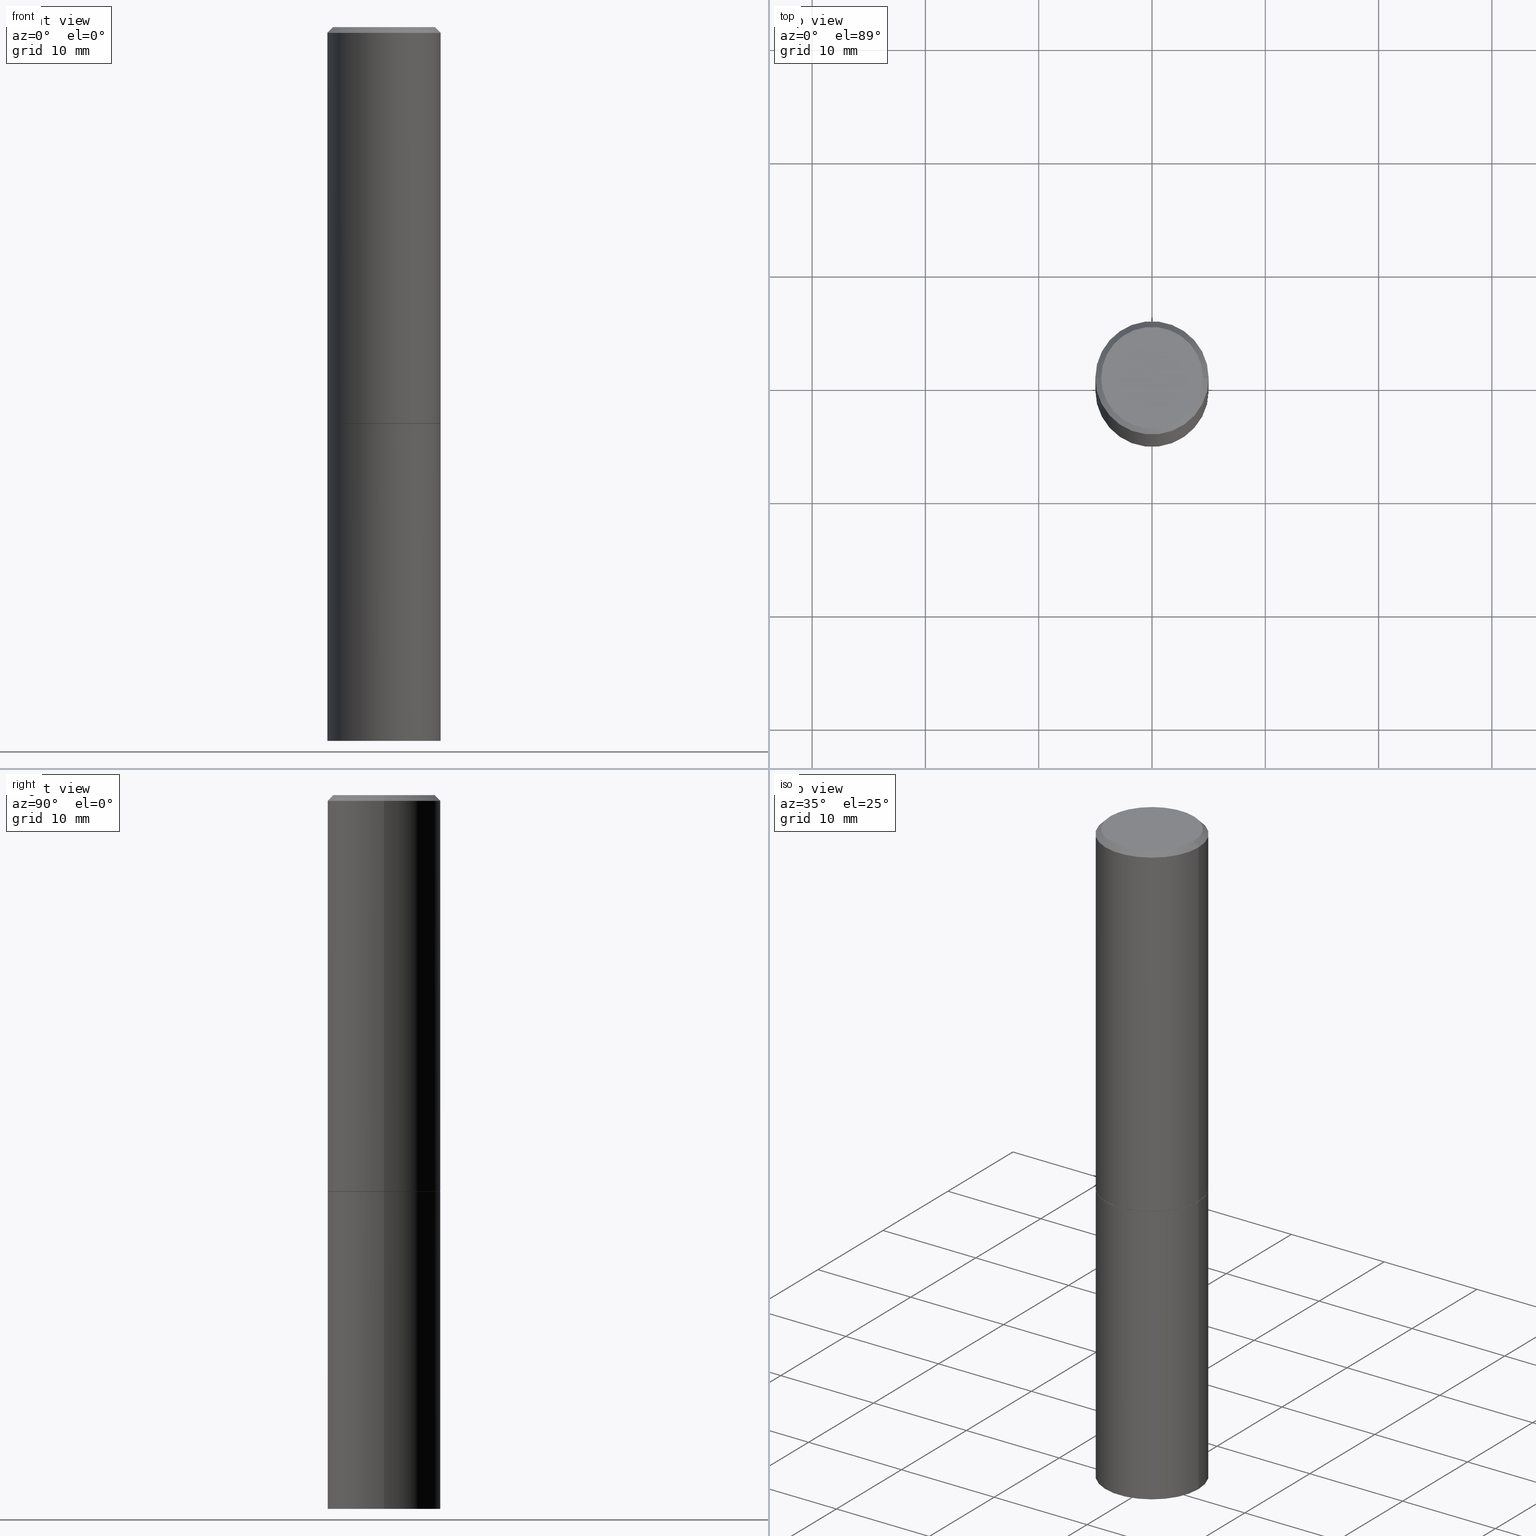
[diagram: canonical four-view strip — front | top / right | iso, engineering-drawing reading convention]
A machine part, canonical four-view strip (front | top / right | iso — engineering-drawing reading convention). The complete STEP part file that produces these views, byte-faithful:
ISO-10303-21;
HEADER;
FILE_DESCRIPTION (( 'STEP AP203' ),
    '1' );
FILE_NAME ('82978.STEP',
    '2024-02-29T20:14:35',
    ( '' ),
    ( '' ),
    'SwSTEP 2.0',
    'SolidWorks 2023',
    '' );
FILE_SCHEMA (( 'CONFIG_CONTROL_DESIGN' ));
ENDSEC;

DATA;
#1 = PRODUCT_RELATED_PRODUCT_CATEGORY ( 'detail', '', ( #253 ) ) ;
#2 = ORIENTED_EDGE ( 'NONE', *, *, #203, .F. ) ;
#3 = CARTESIAN_POINT ( 'NONE',  ( 0.1968500000000000250, -1.374596203102541608E-15, 9.598753983154300858E-30 ) ) ;
#4 = AXIS2_PLACEMENT_3D ( 'NONE', #13, #215, #325 ) ;
#5 = PERSON_AND_ORGANIZATION_ROLE ( 'creator' ) ;
#6 = DIRECTION ( 'NONE',  ( 2.438088387897960049E-29, -3.491481338843145188E-15, -1.000000000000000000 ) ) ;
#7 = EDGE_CURVE ( 'NONE', #239, #103, #52, .T. ) ;
#8 = LINE ( 'NONE', #126, #19 ) ;
#9 = CARTESIAN_POINT ( 'NONE',  ( 4.890937612370283668E-31, -6.982962677686305168E-17, -0.02000000000000004205 ) ) ;
#10 = APPROVAL_DATE_TIME ( #173, #142 ) ;
#11 = DIRECTION ( 'NONE',  ( 0.7071067811865465735, -7.319954787623252890E-15, -0.7071067811865484609 ) ) ;
#12 = CARTESIAN_POINT ( 'NONE',  ( -0.1968500000000000250, 1.398703375343757393E-15, -9.682923725166783677E-30 ) ) ;
#13 = CARTESIAN_POINT ( 'NONE',  ( 3.367165999236314681E-29, -4.807420655453126643E-15, -1.376900000000000013 ) ) ;
#14 = VECTOR ( 'NONE', #312, 39.37007874015748143 ) ;
#15 = APPLICATION_PROTOCOL_DEFINITION ( 'international standard', 'config_control_design', 1994, #271 ) ;
#16 = CARTESIAN_POINT ( 'NONE',  ( -0.1968500000000000250, -5.336713275418556283E-15, -2.480300000000000171 ) ) ;
#17 = CYLINDRICAL_SURFACE ( 'NONE', #230, 0.1968499999999998307 ) ;
#18 = ORIENTED_EDGE ( 'NONE', *, *, #348, .F. ) ;
#19 = VECTOR ( 'NONE', #96, 39.37007874015748143 ) ;
#20 = AXIS2_PLACEMENT_3D ( 'NONE', #255, #225, #334 ) ;
#21 = CC_DESIGN_PERSON_AND_ORGANIZATION_ASSIGNMENT ( #45, #353, ( #253 ) ) ;
#22 = DIRECTION ( 'NONE',  ( -2.445468806185136597E-29, 3.491481338843145583E-15, 1.000000000000000000 ) ) ;
#23 = EDGE_CURVE ( 'NONE', #317, #298, #8, .T. ) ;
#24 = ORGANIZATION ( 'UNSPECIFIED', 'UNSPECIFIED', '' ) ;
#25 = PLANE ( 'NONE',  #364 ) ;
#26 = PLANE ( 'NONE',  #307 ) ;
#27 = COORDINATED_UNIVERSAL_TIME_OFFSET ( 5, 0, .BEHIND. ) ;
#28 = AXIS2_PLACEMENT_3D ( 'NONE', #78, #195, #281 ) ;
#29 = CARTESIAN_POINT ( 'NONE',  ( 1.374596203102602153E-15, 0.1968499999999913375, -2.480300000000001059 ) ) ;
#30 = EDGE_CURVE ( 'NONE', #74, #298, #266, .T. ) ;
#31 = DIRECTION ( 'NONE',  ( -2.445468806185136597E-29, 3.491481338843145583E-15, 1.000000000000000000 ) ) ;
#32 = DATE_AND_TIME ( #42, #198 ) ;
#33 = DIRECTION ( 'NONE',  ( -1.000000000000000000, 6.982962677686265922E-15, -4.876176775795935793E-29 ) ) ;
#34 = ORIENTED_EDGE ( 'NONE', *, *, #265, .T. ) ;
#35 = ADVANCED_BREP_SHAPE_REPRESENTATION ( '82978', ( #99, #113, #132 ), #93 ) ;
#36 = PERSON_AND_ORGANIZATION ( #207, #24 ) ;
#37 = CARTESIAN_POINT ( 'NONE',  ( 0.1968500000000000250, -1.003451736783519694E-14, -2.480300000000000171 ) ) ;
#38 = AXIS2_PLACEMENT_3D ( 'NONE', #287, #231, #341 ) ;
#39 = ORIENTED_EDGE ( 'NONE', *, *, #51, .F. ) ;
#40 = AXIS2_PLACEMENT_3D ( 'NONE', #153, #176, #291 ) ;
#41 = CALENDAR_DATE ( 2024, 29, 2 ) ;
#42 = CALENDAR_DATE ( 2024, 29, 2 ) ;
#43 = EDGE_LOOP ( 'NONE', ( #177, #55, #242, #354 ) ) ;
#44 = DIRECTION ( 'NONE',  ( 1.000000000000000000, -6.982962677686266711E-15, 0.000000000000000000 ) ) ;
#45 = PERSON_AND_ORGANIZATION ( #207, #24 ) ;
#46 = ORIENTED_EDGE ( 'NONE', *, *, #200, .F. ) ;
#47 = CC_DESIGN_PERSON_AND_ORGANIZATION_ASSIGNMENT ( #166, #246, ( #363 ) ) ;
#48 = DIRECTION ( 'NONE',  ( 1.000000000000000000, -6.982962677686266711E-15, 0.000000000000000000 ) ) ;
#49 = DIRECTION ( 'NONE',  ( -2.445468806185136597E-29, 3.491481338843145583E-15, 1.000000000000000000 ) ) ;
#50 = VERTEX_POINT ( 'NONE', #16 ) ;
#51 = EDGE_CURVE ( 'NONE', #50, #284, #272, .T. ) ;
#52 = CIRCLE ( 'NONE', #83, 0.1768499999999997851 ) ;
#53 = AXIS2_PLACEMENT_3D ( 'NONE', #282, #22, #141 ) ;
#54 = CIRCLE ( 'NONE', #109, 0.1968499999999999417 ) ;
#55 = ORIENTED_EDGE ( 'NONE', *, *, #301, .T. ) ;
#56 = CARTESIAN_POINT ( 'NONE',  ( 3.369611468042499724E-29, -4.810912136791970439E-15, -1.377900000000000125 ) ) ;
#57 = CARTESIAN_POINT ( 'NONE',  ( -0.1958499999999999963, -3.414015734457591258E-15, -1.377899999999999903 ) ) ;
#58 = DIRECTION ( 'NONE',  ( 1.000000000000000000, -6.982962677686267499E-15, 0.000000000000000000 ) ) ;
#59 = DATE_TIME_ROLE ( 'creation_date' ) ;
#60 = DIRECTION ( 'NONE',  ( 2.445468806185136597E-29, -3.491481338843145583E-15, -1.000000000000000000 ) ) ;
#61 = ORIENTED_EDGE ( 'NONE', *, *, #73, .F. ) ;
#62 = PERSON_AND_ORGANIZATION ( #207, #24 ) ;
#63 = ORIENTED_EDGE ( 'NONE', *, *, #200, .T. ) ;
#64 = APPROVAL_PERSON_ORGANIZATION ( #327, #213, #104 ) ;
#65 = DIRECTION ( 'NONE',  ( -2.445468806185136597E-29, 3.491481338843145583E-15, 1.000000000000000000 ) ) ;
#66 = ORIENTED_EDGE ( 'NONE', *, *, #311, .F. ) ;
#67 = EDGE_CURVE ( 'NONE', #298, #74, #54, .T. ) ;
#68 = LENGTH_MEASURE_WITH_UNIT ( LENGTH_MEASURE( 0.02539999999999999897 ), #251 );
#69 = VECTOR ( 'NONE', #72, 39.37007874015748143 ) ;
#70 = EDGE_LOOP ( 'NONE', ( #252, #247, #347, #244 ) ) ;
#71 = ORIENTED_EDGE ( 'NONE', *, *, #115, .T. ) ;
#72 = DIRECTION ( 'NONE',  ( -2.445468806185136877E-29, 3.491481338843145188E-15, 1.000000000000000000 ) ) ;
#73 = EDGE_CURVE ( 'NONE', #332, #192, #80, .T. ) ;
#74 = VERTEX_POINT ( 'NONE', #352 ) ;
#75 = EDGE_LOOP ( 'NONE', ( #63, #165 ) ) ;
#76 = FACE_OUTER_BOUND ( 'NONE', #330, .T. ) ;
#77 = EDGE_CURVE ( 'NONE', #317, #130, #138, .T. ) ;
#78 = CARTESIAN_POINT ( 'NONE',  ( 3.369611468042499724E-29, -4.810912136791970439E-15, -1.377900000000000125 ) ) ;
#79 = CARTESIAN_POINT ( 'NONE',  ( -0.1768499999999997851, 1.269851762937246069E-15, 4.268512490091652920E-18 ) ) ;
#80 = CIRCLE ( 'NONE', #296, 0.1968499999999997752 ) ;
#81 = ADVANCED_FACE ( 'NONE', ( #76 ), #25, .F. ) ;
#82 = LOCAL_TIME ( 15, 14, 35.00000000000000000, #324 ) ;
#83 = AXIS2_PLACEMENT_3D ( 'NONE', #249, #268, #328 ) ;
#84 = CARTESIAN_POINT ( 'NONE',  ( 3.369611468042499724E-29, -4.810912136791970439E-15, -1.377900000000000125 ) ) ;
#85 = VECTOR ( 'NONE', #297, 39.37007874015748143 ) ;
#86 = ADVANCED_FACE ( 'NONE', ( #223 ), #136, .F. ) ;
#87 = DIMENSIONAL_EXPONENTS ( 1.000000000000000000, 0.000000000000000000, 0.000000000000000000, 0.000000000000000000, 0.000000000000000000, 0.000000000000000000, 0.000000000000000000 ) ;
#88 = CARTESIAN_POINT ( 'NONE',  ( 0.000000000000000000, 0.000000000000000000, 0.000000000000000000 ) ) ;
#89 = LOCAL_TIME ( 15, 14, 35.00000000000000000, #150 ) ;
#90 = LINE ( 'NONE', #3, #149 ) ;
#91 = DIRECTION ( 'NONE',  ( -1.000000000000000000, 6.982962677686266711E-15, 0.000000000000000000 ) ) ;
#92 = ORIENTED_EDGE ( 'NONE', *, *, #73, .T. ) ;
#93 =( GEOMETRIC_REPRESENTATION_CONTEXT ( 3 ) GLOBAL_UNCERTAINTY_ASSIGNED_CONTEXT ( ( #181 ) ) GLOBAL_UNIT_ASSIGNED_CONTEXT ( ( #218, #163, #133 ) ) REPRESENTATION_CONTEXT ( 'NONE', 'WORKASPACE' ) );
#94 = CALENDAR_DATE ( 2024, 29, 2 ) ;
#95 = APPLICATION_PROTOCOL_DEFINITION ( 'international standard', 'config_control_design', 1994, #292 ) ;
#96 = DIRECTION ( 'NONE',  ( 0.7071067811865957564, -2.468850131082761932E-15, 0.7071067811864992780 ) ) ;
#97 = DIRECTION ( 'NONE',  ( -2.445468806185136597E-29, 3.491481338843145583E-15, 1.000000000000000000 ) ) ;
#98 = AXIS2_PLACEMENT_3D ( 'NONE', #241, #60, #91 ) ;
#99 = MANIFOLD_SOLID_BREP ( 'Body-Move/Copy2[1]', #264 ) ;
#100 = ORIENTED_EDGE ( 'NONE', *, *, #224, .F. ) ;
#101 = ADVANCED_FACE ( 'NONE', ( #151 ), #108, .T. ) ;
#102 = CARTESIAN_POINT ( 'NONE',  ( 0.000000000000000000, 0.000000000000000000, 0.000000000000000000 ) ) ;
#103 = VERTEX_POINT ( 'NONE', #79 ) ;
#104 = APPROVAL_ROLE ( '' ) ;
#105 = ORIENTED_EDGE ( 'NONE', *, *, #265, .F. ) ;
#106 = CARTESIAN_POINT ( 'NONE',  ( 3.369611468042499163E-29, -4.810912136791969650E-15, -1.377899999999999903 ) ) ;
#107 = ORIENTED_EDGE ( 'NONE', *, *, #51, .T. ) ;
#108 = CONICAL_SURFACE ( 'NONE', #20, 0.1958499999999999963, 0.7853981633975165577 ) ;
#109 = AXIS2_PLACEMENT_3D ( 'NONE', #275, #131, #350 ) ;
#110 = DIRECTION ( 'NONE',  ( 1.000000000000000000, -6.982962677686268288E-15, 0.000000000000000000 ) ) ;
#111 = CARTESIAN_POINT ( 'NONE',  ( -0.1968499999999997752, 1.304766576325676930E-15, -0.02000000000000004205 ) ) ;
#112 = FACE_OUTER_BOUND ( 'NONE', #217, .T. ) ;
#113 = MANIFOLD_SOLID_BREP ( 'Body-Move/Copy2[2]', #139 ) ;
#114 = ADVANCED_FACE ( 'NONE', ( #339 ), #337, .T. ) ;
#115 = EDGE_CURVE ( 'NONE', #103, #332, #360, .T. ) ;
#116 = ORIENTED_EDGE ( 'NONE', *, *, #135, .T. ) ;
#117 = AXIS2_PLACEMENT_3D ( 'NONE', #56, #180, #58 ) ;
#118 = DIRECTION ( 'NONE',  ( -2.445468806185136597E-29, 3.491481338843145583E-15, 1.000000000000000000 ) ) ;
#119 = DIRECTION ( 'NONE',  ( 1.000000000000000000, -6.982962677686265922E-15, 4.876176775795935793E-29 ) ) ;
#120 = DIRECTION ( 'NONE',  ( 1.000000000000000000, -6.982962677686267499E-15, 0.000000000000000000 ) ) ;
#121 = SECURITY_CLASSIFICATION ( '', '', #318 ) ;
#122 = APPROVAL ( #155, 'UNSPECIFIED' ) ;
#123 = DIRECTION ( 'NONE',  ( 1.000000000000000000, -6.982962677686267499E-15, 0.000000000000000000 ) ) ;
#124 = AXIS2_PLACEMENT_3D ( 'NONE', #106, #97, #329 ) ;
#125 = CARTESIAN_POINT ( 'NONE',  ( 1.374596203102575135E-15, 0.1968499999999951955, -1.377900000000000791 ) ) ;
#126 = CARTESIAN_POINT ( 'NONE',  ( 0.1958499999999999963, -6.178525377216825244E-15, -1.377899999999999903 ) ) ;
#127 = DIRECTION ( 'NONE',  ( -2.445468806185136877E-29, 3.491481338843145188E-15, 1.000000000000000000 ) ) ;
#128 = CARTESIAN_POINT ( 'NONE',  ( 0.000000000000000000, 0.000000000000000000, 0.000000000000000000 ) ) ;
#129 = AXIS2_PLACEMENT_3D ( 'NONE', #84, #262, #120 ) ;
#130 = VERTEX_POINT ( 'NONE', #57 ) ;
#131 = DIRECTION ( 'NONE',  ( -2.445468806185136597E-29, 3.491481338843145583E-15, 1.000000000000000000 ) ) ;
#132 = AXIS2_PLACEMENT_3D ( 'NONE', #128, #160, #346 ) ;
#133 =( NAMED_UNIT ( * ) SI_UNIT ( $, .STERADIAN. ) SOLID_ANGLE_UNIT ( ) );
#134 = ORIENTED_EDGE ( 'NONE', *, *, #115, .F. ) ;
#135 = EDGE_CURVE ( 'NONE', #192, #332, #168, .T. ) ;
#136 = PLANE ( 'NONE',  #28 ) ;
#137 = DIRECTION ( 'NONE',  ( -1.000000000000000000, 6.982962677686266711E-15, 0.000000000000000000 ) ) ;
#138 = CIRCLE ( 'NONE', #222, 0.1958499999999999963 ) ;
#139 = CLOSED_SHELL ( 'NONE', ( #101, #306, #232, #169, #335, #114, #86, #81 ) ) ;
#140 = CARTESIAN_POINT ( 'NONE',  ( 1.234936949548814617E-15, 0.1768499999999997851, -6.153342185293593634E-16 ) ) ;
#141 = DIRECTION ( 'NONE',  ( 1.000000000000000000, -6.982962677686268288E-15, 0.000000000000000000 ) ) ;
#142 = APPROVAL ( #202, 'UNSPECIFIED' ) ;
#143 = CC_DESIGN_APPROVAL ( #213, ( #363 ) ) ;
#144 = FACE_OUTER_BOUND ( 'NONE', #277, .T. ) ;
#145 = CC_DESIGN_APPROVAL ( #122, ( #121 ) ) ;
#146 = EDGE_CURVE ( 'NONE', #298, #192, #283, .T. ) ;
#147 = EDGE_LOOP ( 'NONE', ( #2, #66 ) ) ;
#148 = DIRECTION ( 'NONE',  ( -1.000000000000000000, 6.982962677686265922E-15, -4.876176775795935793E-29 ) ) ;
#149 = VECTOR ( 'NONE', #366, 39.37007874015748143 ) ;
#150 = COORDINATED_UNIVERSAL_TIME_OFFSET ( 5, 0, .BEHIND. ) ;
#151 = FACE_OUTER_BOUND ( 'NONE', #70, .T. ) ;
#152 = CARTESIAN_POINT ( 'NONE',  ( 0.1968500000000000250, -6.185508339894512836E-15, -1.377900000000000125 ) ) ;
#153 = CARTESIAN_POINT ( 'NONE',  ( 6.065496279980994755E-29, -8.659921164732655335E-15, -2.480300000000000171 ) ) ;
#154 = PRODUCT_DEFINITION_FORMATION_WITH_SPECIFIED_SOURCE ( 'ANY', '', #253, .NOT_KNOWN. ) ;
#155 = APPROVAL_STATUS ( 'not_yet_approved' ) ;
#156 = DIRECTION ( 'NONE',  ( -2.445468806185136597E-29, 3.491481338843145583E-15, 1.000000000000000000 ) ) ;
#157 = ORIENTED_EDGE ( 'NONE', *, *, #30, .T. ) ;
#158 = AXIS2_PLACEMENT_3D ( 'NONE', #362, #269, #137 ) ;
#159 = DATE_TIME_ROLE ( 'classification_date' ) ;
#160 = DIRECTION ( 'NONE',  ( 0.000000000000000000, 0.000000000000000000, 1.000000000000000000 ) ) ;
#161 = ADVANCED_FACE ( 'NONE', ( #144 ), #319, .T. ) ;
#162 = ORIENTED_EDGE ( 'NONE', *, *, #278, .F. ) ;
#163 =( NAMED_UNIT ( * ) PLANE_ANGLE_UNIT ( ) SI_UNIT ( $, .RADIAN. ) );
#164 = ORIENTED_EDGE ( 'NONE', *, *, #203, .T. ) ;
#165 = ORIENTED_EDGE ( 'NONE', *, *, #278, .T. ) ;
#166 = PERSON_AND_ORGANIZATION ( #207, #24 ) ;
#167 = ORIENTED_EDGE ( 'NONE', *, *, #301, .F. ) ;
#168 = CIRCLE ( 'NONE', #185, 0.1968499999999997752 ) ;
#169 = ADVANCED_FACE ( 'NONE', ( #184 ), #280, .T. ) ;
#170 = ORIENTED_EDGE ( 'NONE', *, *, #7, .T. ) ;
#171 = FACE_OUTER_BOUND ( 'NONE', #43, .T. ) ;
#172 = AXIS2_PLACEMENT_3D ( 'NONE', #125, #209, #33 ) ;
#173 = DATE_AND_TIME ( #41, #89 ) ;
#174 = PLANE ( 'NONE',  #172 ) ;
#175 = PERSON_AND_ORGANIZATION ( #207, #24 ) ;
#176 = DIRECTION ( 'NONE',  ( -2.445468806185136597E-29, 3.491481338843145583E-15, 1.000000000000000000 ) ) ;
#177 = ORIENTED_EDGE ( 'NONE', *, *, #67, .T. ) ;
#178 = CARTESIAN_POINT ( 'NONE',  ( 0.1968499999999998307, -1.374596203102540425E-15, 9.598753983154291049E-30 ) ) ;
#179 = DATE_AND_TIME ( #236, #237 ) ;
#180 = DIRECTION ( 'NONE',  ( -2.445468806185136597E-29, 3.491481338843145583E-15, 1.000000000000000000 ) ) ;
#181 = UNCERTAINTY_MEASURE_WITH_UNIT (LENGTH_MEASURE( 1.000000000000000082E-05 ), #218, 'distance_accuracy_value', 'NONE');
#182 = ORIENTED_EDGE ( 'NONE', *, *, #311, .T. ) ;
#183 = ADVANCED_FACE ( 'NONE', ( #112 ), #293, .T. ) ;
#184 = FACE_OUTER_BOUND ( 'NONE', #206, .T. ) ;
#185 = AXIS2_PLACEMENT_3D ( 'NONE', #9, #31, #48 ) ;
#186 = COORDINATED_UNIVERSAL_TIME_OFFSET ( 5, 0, .BEHIND. ) ;
#187 = VERTEX_POINT ( 'NONE', #152 ) ;
#188 = VECTOR ( 'NONE', #11, 39.37007874015748143 ) ;
#189 = LINE ( 'NONE', #300, #85 ) ;
#190 = CARTESIAN_POINT ( 'NONE',  ( 4.890937612370283668E-31, -6.982962677686305168E-17, -0.02000000000000004205 ) ) ;
#191 = MECHANICAL_CONTEXT ( 'NONE', #271, 'mechanical' ) ;
#192 = VERTEX_POINT ( 'NONE', #313 ) ;
#193 = APPROVAL_DATE_TIME ( #331, #213 ) ;
#194 = ORIENTED_EDGE ( 'NONE', *, *, #359, .F. ) ;
#195 = DIRECTION ( 'NONE',  ( -2.438088387897960049E-29, 3.491481338843145188E-15, 1.000000000000000000 ) ) ;
#196 = CC_DESIGN_DATE_AND_TIME_ASSIGNMENT ( #179, #159, ( #121 ) ) ;
#197 = CIRCLE ( 'NONE', #129, 0.1968500000000000250 ) ;
#198 = LOCAL_TIME ( 15, 14, 35.00000000000000000, #186 ) ;
#199 = CIRCLE ( 'NONE', #38, 0.1768499999999997851 ) ;
#200 = EDGE_CURVE ( 'NONE', #187, #284, #288, .T. ) ;
#201 = AXIS2_PLACEMENT_3D ( 'NONE', #365, #118, #263 ) ;
#202 = APPROVAL_STATUS ( 'not_yet_approved' ) ;
#203 = EDGE_CURVE ( 'NONE', #303, #50, #260, .T. ) ;
#204 = APPROVAL_PERSON_ORGANIZATION ( #36, #122, #314 ) ;
#205 = DIRECTION ( 'NONE',  ( 1.000000000000000000, -6.982962677686265922E-15, 4.876176775795935793E-29 ) ) ;
#206 = EDGE_LOOP ( 'NONE', ( #305, #100, #71, #92 ) ) ;
#207 = PERSON ( 'UNSPECIFIED', 'UNSPECIFIED', 'UNSPECIFIED', ('UNSPECIFIED'), ('UNSPECIFIED'), ('UNSPECIFIED') ) ;
#208 = PERSON_AND_ORGANIZATION_ROLE ( 'classification_officer' ) ;
#209 = DIRECTION ( 'NONE',  ( 2.438088387897960049E-29, -3.491481338843145188E-15, -1.000000000000000000 ) ) ;
#210 = EDGE_LOOP ( 'NONE', ( #219, #194 ) ) ;
#211 = LINE ( 'NONE', #321, #188 ) ;
#212 = EDGE_LOOP ( 'NONE', ( #18, #273, #322, #344 ) ) ;
#213 = APPROVAL ( #214, 'UNSPECIFIED' ) ;
#214 = APPROVAL_STATUS ( 'not_yet_approved' ) ;
#215 = DIRECTION ( 'NONE',  ( -2.445468806185136597E-29, 3.491481338843145583E-15, 1.000000000000000000 ) ) ;
#216 = AXIS2_PLACEMENT_3D ( 'NONE', #88, #65, #205 ) ;
#217 = EDGE_LOOP ( 'NONE', ( #39, #182, #34, #162 ) ) ;
#218 =( CONVERSION_BASED_UNIT ( 'INCH', #68 ) LENGTH_UNIT ( ) NAMED_UNIT ( #87 ) );
#219 = ORIENTED_EDGE ( 'NONE', *, *, #77, .F. ) ;
#220 = CALENDAR_DATE ( 2024, 29, 2 ) ;
#221 = ORIENTED_EDGE ( 'NONE', *, *, #326, .T. ) ;
#222 = AXIS2_PLACEMENT_3D ( 'NONE', #250, #308, #110 ) ;
#223 = FACE_OUTER_BOUND ( 'NONE', #210, .T. ) ;
#224 = EDGE_CURVE ( 'NONE', #103, #239, #199, .T. ) ;
#225 = DIRECTION ( 'NONE',  ( -2.445468806185136597E-29, 3.491481338843145583E-15, 1.000000000000000000 ) ) ;
#226 = DIRECTION ( 'NONE',  ( -2.445468806185136597E-29, 3.491481338843145583E-15, 1.000000000000000000 ) ) ;
#227 = DIRECTION ( 'NONE',  ( -0.7071067811865465735, 2.468850131082246805E-15, -0.7071067811865484609 ) ) ;
#228 = VECTOR ( 'NONE', #227, 39.37007874015748143 ) ;
#229 = DIRECTION ( 'NONE',  ( 2.438088387897960049E-29, -3.491481338843145188E-15, -1.000000000000000000 ) ) ;
#230 = AXIS2_PLACEMENT_3D ( 'NONE', #355, #49, #349 ) ;
#231 = DIRECTION ( 'NONE',  ( -2.445468806185136597E-29, 3.491481338843145583E-15, 1.000000000000000000 ) ) ;
#232 = ADVANCED_FACE ( 'NONE', ( #267 ), #310, .T. ) ;
#233 = APPROVAL_ROLE ( '' ) ;
#234 = CARTESIAN_POINT ( 'NONE',  ( -0.1968500000000000250, -5.336713275418556283E-15, -1.377900000000000125 ) ) ;
#235 = ORIENTED_EDGE ( 'NONE', *, *, #7, .F. ) ;
#236 = CALENDAR_DATE ( 2024, 29, 2 ) ;
#237 = LOCAL_TIME ( 15, 14, 35.00000000000000000, #245 ) ;
#238 = CARTESIAN_POINT ( 'NONE',  ( 6.065496279980994755E-29, -8.659921164732655335E-15, -2.480300000000000171 ) ) ;
#239 = VERTEX_POINT ( 'NONE', #289 ) ;
#240 = PERSON_AND_ORGANIZATION_ROLE ( 'design_supplier' ) ;
#241 = CARTESIAN_POINT ( 'NONE',  ( 4.890937612370283668E-31, -6.982962677686305168E-17, -0.02000000000000004205 ) ) ;
#242 = ORIENTED_EDGE ( 'NONE', *, *, #135, .F. ) ;
#243 = CARTESIAN_POINT ( 'NONE',  ( -0.1968499999999998307, 1.398703375343756013E-15, -9.682923725166775270E-30 ) ) ;
#244 = ORIENTED_EDGE ( 'NONE', *, *, #23, .F. ) ;
#245 = COORDINATED_UNIVERSAL_TIME_OFFSET ( 5, 0, .BEHIND. ) ;
#246 = PERSON_AND_ORGANIZATION_ROLE ( 'creator' ) ;
#247 = ORIENTED_EDGE ( 'NONE', *, *, #348, .T. ) ;
#248 = CIRCLE ( 'NONE', #124, 0.1958499999999999963 ) ;
#249 = CARTESIAN_POINT ( 'NONE',  ( -1.043851414335219820E-46, 1.490343170380447200E-32, 4.268512490100411279E-18 ) ) ;
#250 = CARTESIAN_POINT ( 'NONE',  ( 3.369611468042499163E-29, -4.810912136791969650E-15, -1.377899999999999903 ) ) ;
#251 =( LENGTH_UNIT ( ) NAMED_UNIT ( * ) SI_UNIT ( $, .METRE. ) );
#252 = ORIENTED_EDGE ( 'NONE', *, *, #77, .T. ) ;
#253 = PRODUCT ( '82978', '82978', '', ( #191 ) ) ;
#254 = ADVANCED_FACE ( 'NONE', ( #340 ), #26, .T. ) ;
#255 = CARTESIAN_POINT ( 'NONE',  ( 3.369611468042499163E-29, -4.810912136791969650E-15, -1.377899999999999903 ) ) ;
#256 = APPROVAL_PERSON_ORGANIZATION ( #175, #142, #233 ) ;
#257 = ORIENTED_EDGE ( 'NONE', *, *, #224, .T. ) ;
#258 = CYLINDRICAL_SURFACE ( 'NONE', #201, 0.1968499999999998307 ) ;
#259 = CC_DESIGN_PERSON_AND_ORGANIZATION_ASSIGNMENT ( #261, #5, ( #154 ) ) ;
#260 = CIRCLE ( 'NONE', #357, 0.1968500000000000250 ) ;
#261 = PERSON_AND_ORGANIZATION ( #207, #24 ) ;
#262 = DIRECTION ( 'NONE',  ( -2.445468806185136597E-29, 3.491481338843145583E-15, 1.000000000000000000 ) ) ;
#263 = DIRECTION ( 'NONE',  ( 1.000000000000000000, -6.982962677686266711E-15, 4.876176775795935793E-29 ) ) ;
#264 = CLOSED_SHELL ( 'NONE', ( #161, #254, #285, #183 ) ) ;
#265 = EDGE_CURVE ( 'NONE', #303, #187, #90, .T. ) ;
#266 = CIRCLE ( 'NONE', #4, 0.1968499999999999417 ) ;
#267 = FACE_OUTER_BOUND ( 'NONE', #342, .T. ) ;
#268 = DIRECTION ( 'NONE',  ( -2.445468806185136597E-29, 3.491481338843145583E-15, 1.000000000000000000 ) ) ;
#269 = DIRECTION ( 'NONE',  ( 2.445468806185136597E-29, -3.491481338843145583E-15, -1.000000000000000000 ) ) ;
#270 = DATE_AND_TIME ( #94, #304 ) ;
#271 = APPLICATION_CONTEXT ( 'configuration controlled 3d designs of mechanical parts and assemblies' ) ;
#272 = LINE ( 'NONE', #12, #295 ) ;
#273 = ORIENTED_EDGE ( 'NONE', *, *, #359, .T. ) ;
#274 = CC_DESIGN_PERSON_AND_ORGANIZATION_ASSIGNMENT ( #62, #208, ( #121 ) ) ;
#275 = CARTESIAN_POINT ( 'NONE',  ( 3.367165999236314681E-29, -4.807420655453126643E-15, -1.376900000000000013 ) ) ;
#276 = FACE_OUTER_BOUND ( 'NONE', #294, .T. ) ;
#277 = EDGE_LOOP ( 'NONE', ( #164, #107, #46, #105 ) ) ;
#278 = EDGE_CURVE ( 'NONE', #284, #187, #197, .T. ) ;
#279 = DIRECTION ( 'NONE',  ( -1.000000000000000000, 6.982962677686265922E-15, -4.876176775795935793E-29 ) ) ;
#280 = CONICAL_SURFACE ( 'NONE', #158, 0.1968499999999997752, 0.7853981633974469467 ) ;
#281 = DIRECTION ( 'NONE',  ( 1.000000000000000000, -6.982962677686265922E-15, 4.876176775795935793E-29 ) ) ;
#282 = CARTESIAN_POINT ( 'NONE',  ( 3.369611468042499163E-29, -4.810912136791969650E-15, -1.377899999999999903 ) ) ;
#283 = LINE ( 'NONE', #178, #69 ) ;
#284 = VERTEX_POINT ( 'NONE', #234 ) ;
#285 = ADVANCED_FACE ( 'NONE', ( #315 ), #174, .F. ) ;
#286 = CARTESIAN_POINT ( 'NONE',  ( 0.1968499999999999417, -6.182016858555667463E-15, -1.376900000000000013 ) ) ;
#287 = CARTESIAN_POINT ( 'NONE',  ( -1.043851414335219820E-46, 1.490343170380447200E-32, 4.268512490100411279E-18 ) ) ;
#288 = CIRCLE ( 'NONE', #117, 0.1968500000000000250 ) ;
#289 = CARTESIAN_POINT ( 'NONE',  ( 0.1768499999999997851, -1.316798864272040563E-15, 4.268512490109333727E-18 ) ) ;
#290 = APPROVAL_DATE_TIME ( #270, #122 ) ;
#291 = DIRECTION ( 'NONE',  ( 1.000000000000000000, -6.982962677686267499E-15, 0.000000000000000000 ) ) ;
#292 = APPLICATION_CONTEXT ( 'configuration controlled 3d designs of mechanical parts and assemblies' ) ;
#293 = CYLINDRICAL_SURFACE ( 'NONE', #216, 0.1968500000000000250 ) ;
#294 = EDGE_LOOP ( 'NONE', ( #167, #157, #356, #61 ) ) ;
#295 = VECTOR ( 'NONE', #127, 39.37007874015748143 ) ;
#296 = AXIS2_PLACEMENT_3D ( 'NONE', #190, #302, #44 ) ;
#297 = DIRECTION ( 'NONE',  ( -0.7071067811865957564, 7.493145998870527710E-15, 0.7071067811864992780 ) ) ;
#298 = VERTEX_POINT ( 'NONE', #286 ) ;
#299 = PRODUCT_DEFINITION_SHAPE ( 'NONE', 'NONE',  #363 ) ;
#300 = CARTESIAN_POINT ( 'NONE',  ( -0.1958499999999999963, -3.419314188805812871E-15, -1.377899999999999903 ) ) ;
#301 = EDGE_CURVE ( 'NONE', #74, #332, #320, .T. ) ;
#302 = DIRECTION ( 'NONE',  ( -2.445468806185136597E-29, 3.491481338843145583E-15, 1.000000000000000000 ) ) ;
#303 = VERTEX_POINT ( 'NONE', #37 ) ;
#304 = LOCAL_TIME ( 15, 14, 35.00000000000000000, #27 ) ;
#305 = ORIENTED_EDGE ( 'NONE', *, *, #326, .F. ) ;
#306 = ADVANCED_FACE ( 'NONE', ( #171 ), #258, .T. ) ;
#307 = AXIS2_PLACEMENT_3D ( 'NONE', #29, #6, #148 ) ;
#308 = DIRECTION ( 'NONE',  ( -2.445468806185136597E-29, 3.491481338843145583E-15, 1.000000000000000000 ) ) ;
#309 = CC_DESIGN_PERSON_AND_ORGANIZATION_ASSIGNMENT ( #345, #240, ( #154 ) ) ;
#310 = CONICAL_SURFACE ( 'NONE', #98, 0.1968499999999997752, 0.7853981633974469467 ) ;
#311 = EDGE_CURVE ( 'NONE', #50, #303, #358, .T. ) ;
#312 = DIRECTION ( 'NONE',  ( -2.445468806185136877E-29, 3.491481338843145188E-15, 1.000000000000000000 ) ) ;
#313 = CARTESIAN_POINT ( 'NONE',  ( 0.1968499999999997752, -1.420318657638187544E-15, -0.02000000000000004205 ) ) ;
#314 = APPROVAL_ROLE ( '' ) ;
#315 = FACE_OUTER_BOUND ( 'NONE', #75, .T. ) ;
#316 = DESIGN_CONTEXT ( 'detailed design', #292, 'design' ) ;
#317 = VERTEX_POINT ( 'NONE', #343 ) ;
#318 = SECURITY_CLASSIFICATION_LEVEL ( 'unclassified' ) ;
#319 = CYLINDRICAL_SURFACE ( 'NONE', #338, 0.1968500000000000250 ) ;
#320 = LINE ( 'NONE', #243, #14 ) ;
#321 = CARTESIAN_POINT ( 'NONE',  ( 0.1968499999999997752, -1.420318657638187544E-15, -0.02000000000000004205 ) ) ;
#322 = ORIENTED_EDGE ( 'NONE', *, *, #23, .T. ) ;
#323 = SHAPE_DEFINITION_REPRESENTATION ( #299, #35 ) ;
#324 = COORDINATED_UNIVERSAL_TIME_OFFSET ( 5, 0, .BEHIND. ) ;
#325 = DIRECTION ( 'NONE',  ( 1.000000000000000000, -6.982962677686265922E-15, 0.000000000000000000 ) ) ;
#326 = EDGE_CURVE ( 'NONE', #239, #192, #211, .T. ) ;
#327 = PERSON_AND_ORGANIZATION ( #207, #24 ) ;
#328 = DIRECTION ( 'NONE',  ( 1.000000000000000000, -6.982962677686266711E-15, 4.875932113059884174E-29 ) ) ;
#329 = DIRECTION ( 'NONE',  ( 1.000000000000000000, -6.982962677686268288E-15, 0.000000000000000000 ) ) ;
#330 = EDGE_LOOP ( 'NONE', ( #257, #170 ) ) ;
#331 = DATE_AND_TIME ( #220, #82 ) ;
#332 = VERTEX_POINT ( 'NONE', #351 ) ;
#333 = CC_DESIGN_DATE_AND_TIME_ASSIGNMENT ( #32, #59, ( #363 ) ) ;
#334 = DIRECTION ( 'NONE',  ( 1.000000000000000000, -6.982962677686268288E-15, 0.000000000000000000 ) ) ;
#335 = ADVANCED_FACE ( 'NONE', ( #276 ), #17, .T. ) ;
#336 = CC_DESIGN_SECURITY_CLASSIFICATION ( #121, ( #154 ) ) ;
#337 = CONICAL_SURFACE ( 'NONE', #53, 0.1958499999999999963, 0.7853981633975165577 ) ;
#338 = AXIS2_PLACEMENT_3D ( 'NONE', #102, #226, #119 ) ;
#339 = FACE_OUTER_BOUND ( 'NONE', #212, .T. ) ;
#340 = FACE_OUTER_BOUND ( 'NONE', #147, .T. ) ;
#341 = DIRECTION ( 'NONE',  ( 1.000000000000000000, -6.982962677686266711E-15, 4.875932113059884174E-29 ) ) ;
#342 = EDGE_LOOP ( 'NONE', ( #235, #221, #116, #134 ) ) ;
#343 = CARTESIAN_POINT ( 'NONE',  ( 0.1958499999999999963, -6.178525377216825244E-15, -1.377899999999999903 ) ) ;
#344 = ORIENTED_EDGE ( 'NONE', *, *, #30, .F. ) ;
#345 = PERSON_AND_ORGANIZATION ( #207, #24 ) ;
#346 = DIRECTION ( 'NONE',  ( 1.000000000000000000, 0.000000000000000000, 0.000000000000000000 ) ) ;
#347 = ORIENTED_EDGE ( 'NONE', *, *, #67, .F. ) ;
#348 = EDGE_CURVE ( 'NONE', #130, #74, #189, .T. ) ;
#349 = DIRECTION ( 'NONE',  ( 1.000000000000000000, -6.982962677686266711E-15, 4.876176775795935793E-29 ) ) ;
#350 = DIRECTION ( 'NONE',  ( 1.000000000000000000, -6.982962677686265922E-15, 0.000000000000000000 ) ) ;
#351 = CARTESIAN_POINT ( 'NONE',  ( -0.1968499999999997752, 1.304766576325676930E-15, -0.02000000000000004205 ) ) ;
#352 = CARTESIAN_POINT ( 'NONE',  ( -0.1968499999999999417, -1.039921765771237577E-15, -1.376900000000000013 ) ) ;
#353 = PERSON_AND_ORGANIZATION_ROLE ( 'design_owner' ) ;
#354 = ORIENTED_EDGE ( 'NONE', *, *, #146, .F. ) ;
#355 = CARTESIAN_POINT ( 'NONE',  ( 0.000000000000000000, 0.000000000000000000, 0.000000000000000000 ) ) ;
#356 = ORIENTED_EDGE ( 'NONE', *, *, #146, .T. ) ;
#357 = AXIS2_PLACEMENT_3D ( 'NONE', #238, #156, #123 ) ;
#358 = CIRCLE ( 'NONE', #40, 0.1968500000000000250 ) ;
#359 = EDGE_CURVE ( 'NONE', #130, #317, #248, .T. ) ;
#360 = LINE ( 'NONE', #111, #228 ) ;
#361 = CC_DESIGN_APPROVAL ( #142, ( #154 ) ) ;
#362 = CARTESIAN_POINT ( 'NONE',  ( 4.890937612370283668E-31, -6.982962677686305168E-17, -0.02000000000000004205 ) ) ;
#363 = PRODUCT_DEFINITION ( 'UNKNOWN', '', #154, #316 ) ;
#364 = AXIS2_PLACEMENT_3D ( 'NONE', #140, #229, #279 ) ;
#365 = CARTESIAN_POINT ( 'NONE',  ( 0.000000000000000000, 0.000000000000000000, 0.000000000000000000 ) ) ;
#366 = DIRECTION ( 'NONE',  ( -2.445468806185136877E-29, 3.491481338843145188E-15, 1.000000000000000000 ) ) ;
ENDSEC;
END-ISO-10303-21;
